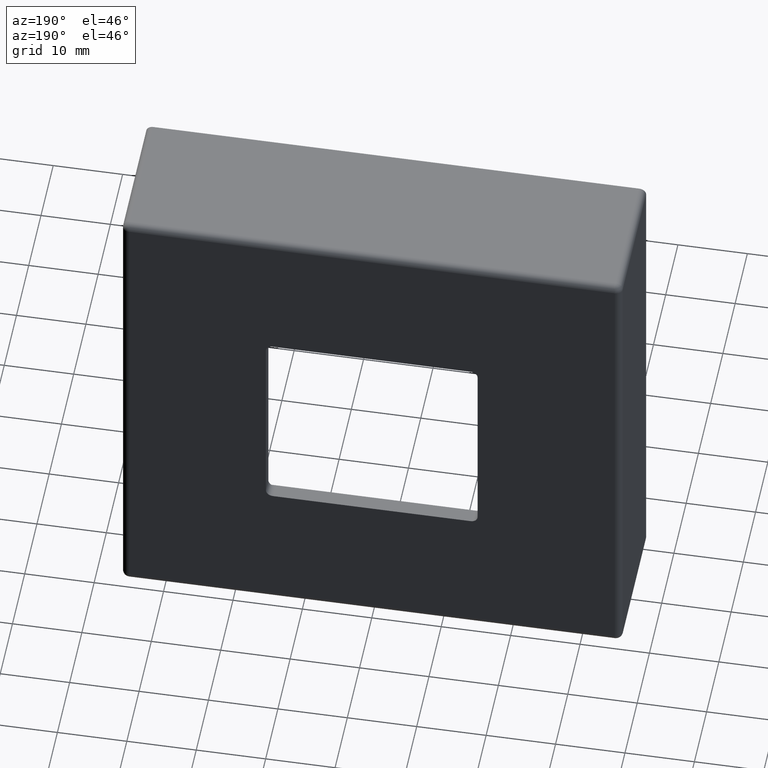
[diagram: clean part render]
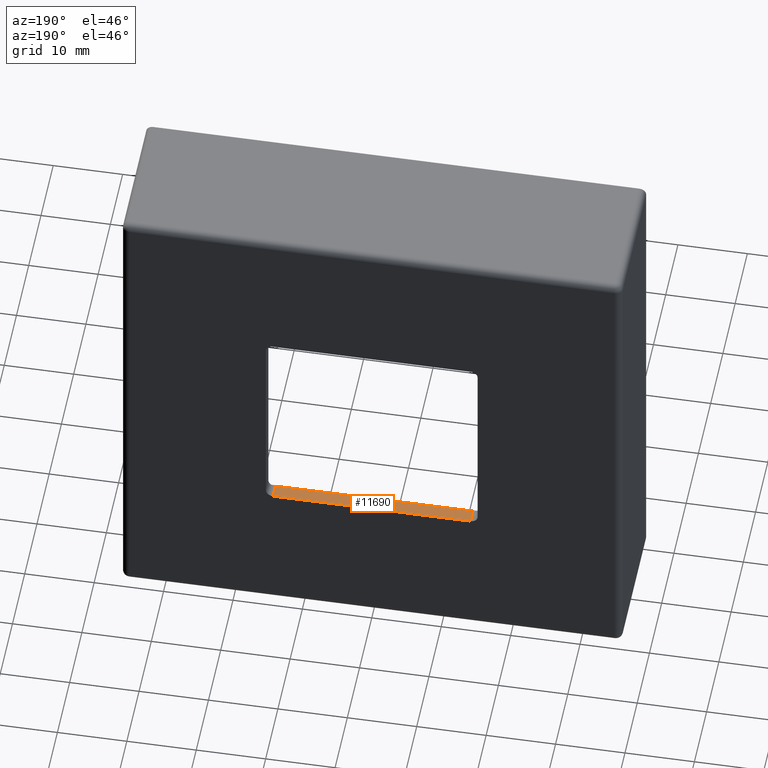
[diagram: same view with one face highlighted and labeled with its STEP entity id]
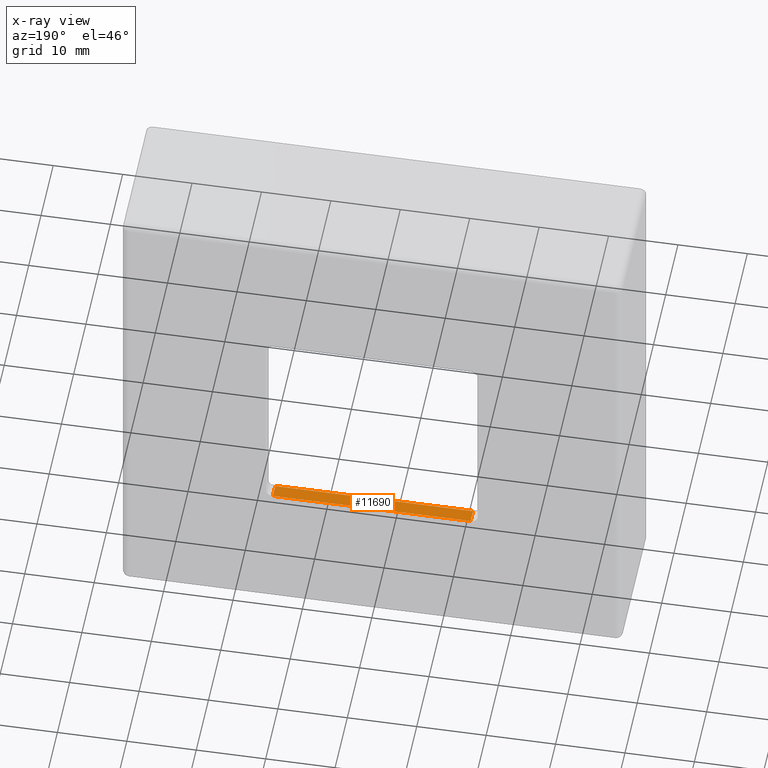
[diagram: x-ray of the same camera — body ghosted, the highlighted face saturated]
A machine part, auxiliary view. The second image highlights one B-rep face of the part: STEP entity #11690.
The next image is the same camera in x-ray: the body ghosted, the highlighted face saturated — about 0% of this face is hidden behind the body in this view.
In plain terms, the highlighted planar face has unit normal (0, 0, -1).
Its self-contained STEP definition (entity closure, byte-faithful):
#4 = EDGE_CURVE ( 'NONE', #1452, #9287, #2076, .T. ) ;
#9 = CARTESIAN_POINT ( 'NONE',  ( 14.24999999999999822, 20.00000000000000000, -15.24999999999999645 ) ) ;
#417 = VECTOR ( 'NONE', #5041, 1000.000000000000000 ) ;
#471 = LINE ( 'NONE', #9, #17389 ) ;
#1452 = VERTEX_POINT ( 'NONE', #14306 ) ;
#2076 = LINE ( 'NONE', #12281, #16341 ) ;
#2359 = DIRECTION ( 'NONE',  ( 0.000000000000000000, 0.000000000000000000, -1.000000000000000000 ) ) ;
#2554 = ORIENTED_EDGE ( 'NONE', *, *, #4, .F. ) ;
#2941 = AXIS2_PLACEMENT_3D ( 'NONE', #10783, #2359, #13297 ) ;
#3020 = DIRECTION ( 'NONE',  ( 0.000000000000000000, -1.000000000000000000, -0.000000000000000000 ) ) ;
#3687 = VERTEX_POINT ( 'NONE', #14445 ) ;
#4347 = EDGE_CURVE ( 'NONE', #1452, #3687, #471, .T. ) ;
#5041 = DIRECTION ( 'NONE',  ( -1.000000000000000000, -0.000000000000000000, -0.000000000000000000 ) ) ;
#6324 = CARTESIAN_POINT ( 'NONE',  ( -15.24999999999999645, 20.00000000000000000, -15.24999999999999645 ) ) ;
#7150 = VECTOR ( 'NONE', #3020, 1000.000000000000000 ) ;
#7613 = EDGE_CURVE ( 'NONE', #3687, #12689, #16239, .T. ) ;
#8493 = CARTESIAN_POINT ( 'NONE',  ( -14.24999999999999467, 18.00000000000000355, -15.24999999999999645 ) ) ;
#9287 = VERTEX_POINT ( 'NONE', #15548 ) ;
#10783 = CARTESIAN_POINT ( 'NONE',  ( -15.24999999999999645, 0.000000000000000000, -15.24999999999999645 ) ) ;
#11216 = ORIENTED_EDGE ( 'NONE', *, *, #4347, .T. ) ;
#11543 = LINE ( 'NONE', #8493, #7150 ) ;
#11690 = ADVANCED_FACE ( 'NONE', ( #12913 ), #16149, .F. ) ;
#12281 = CARTESIAN_POINT ( 'NONE',  ( 0.000000000000000000, 18.00000000000000355, -15.24999999999999645 ) ) ;
#12689 = VERTEX_POINT ( 'NONE', #16154 ) ;
#12913 = FACE_OUTER_BOUND ( 'NONE', #16894, .T. ) ;
#13015 = EDGE_CURVE ( 'NONE', #12689, #9287, #11543, .T. ) ;
#13297 = DIRECTION ( 'NONE',  ( -1.000000000000000000, 0.000000000000000000, -0.000000000000000000 ) ) ;
#14067 = DIRECTION ( 'NONE',  ( -0.000000000000000000, 1.000000000000000000, 0.000000000000000000 ) ) ;
#14306 = CARTESIAN_POINT ( 'NONE',  ( 14.24999999999999822, 18.00000000000000355, -15.24999999999999645 ) ) ;
#14445 = CARTESIAN_POINT ( 'NONE',  ( 14.24999999999999822, 20.00000000000000000, -15.24999999999999645 ) ) ;
#15122 = ORIENTED_EDGE ( 'NONE', *, *, #13015, .T. ) ;
#15548 = CARTESIAN_POINT ( 'NONE',  ( -14.24999999999999467, 18.00000000000000355, -15.24999999999999645 ) ) ;
#15772 = ORIENTED_EDGE ( 'NONE', *, *, #7613, .T. ) ;
#16149 = PLANE ( 'NONE',  #2941 ) ;
#16154 = CARTESIAN_POINT ( 'NONE',  ( -14.24999999999999467, 20.00000000000000000, -15.24999999999999645 ) ) ;
#16239 = LINE ( 'NONE', #6324, #417 ) ;
#16341 = VECTOR ( 'NONE', #16466, 1000.000000000000000 ) ;
#16466 = DIRECTION ( 'NONE',  ( -1.000000000000000000, 0.000000000000000000, 0.000000000000000000 ) ) ;
#16894 = EDGE_LOOP ( 'NONE', ( #2554, #11216, #15772, #15122 ) ) ;
#17389 = VECTOR ( 'NONE', #14067, 1000.000000000000000 ) ;